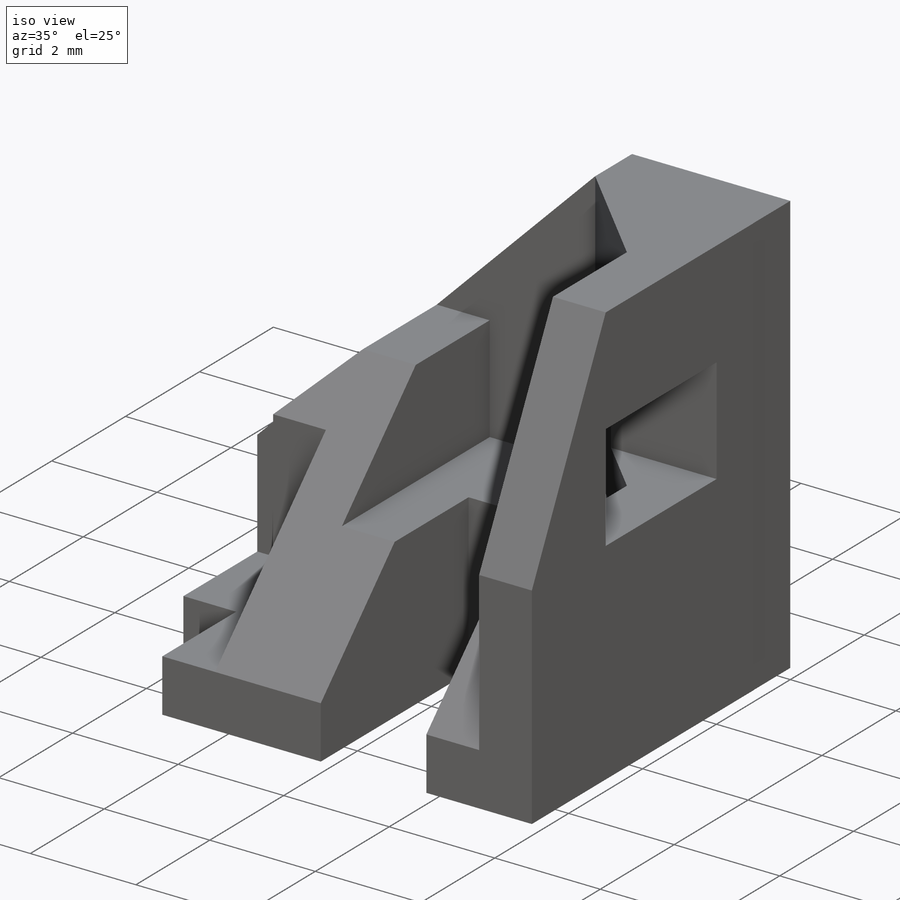
[diagram: iso view]
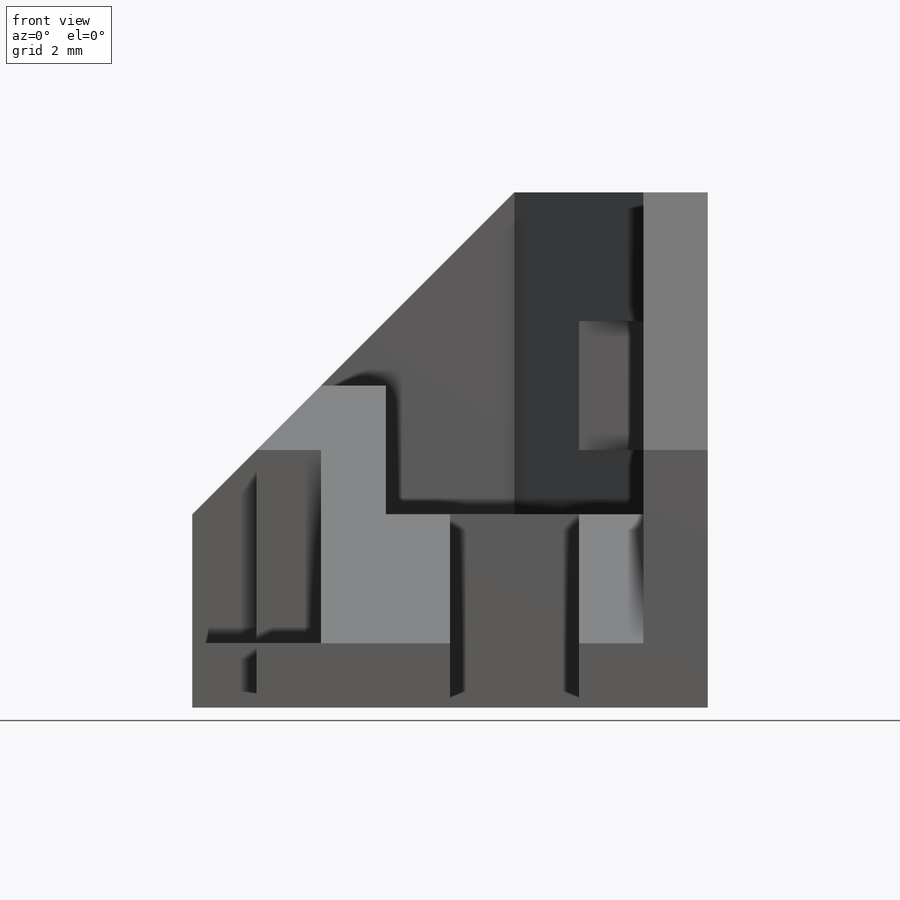
[diagram: front view]
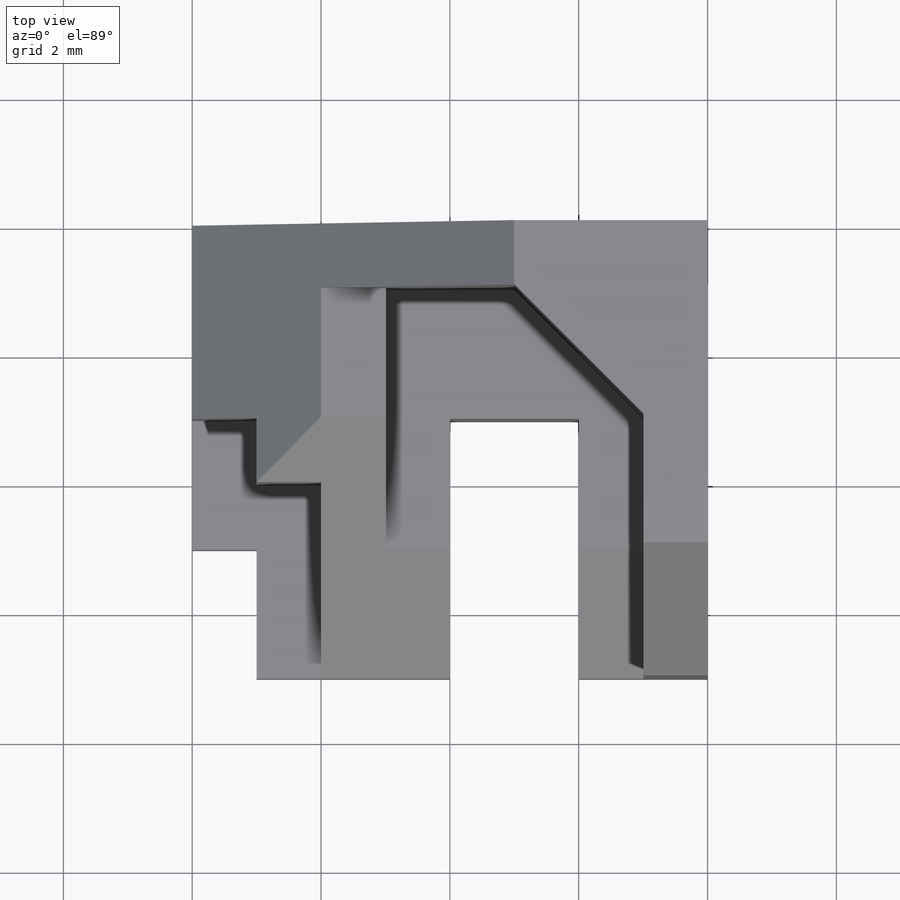
[diagram: top view]
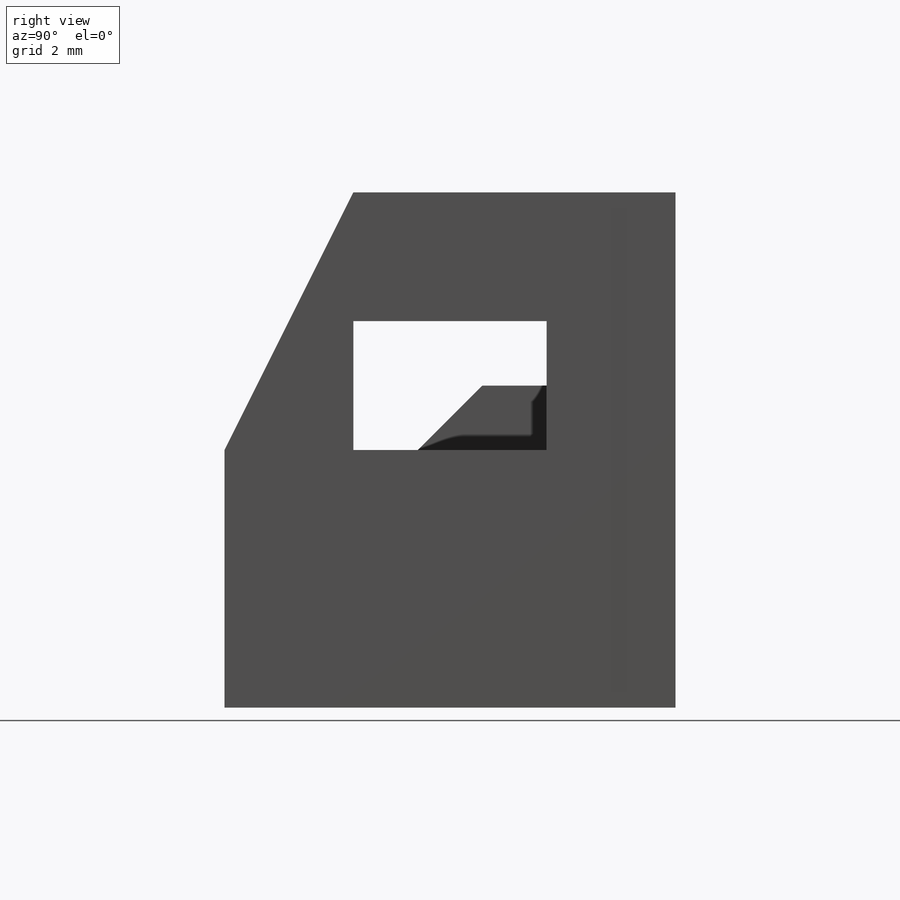
[diagram: right view]
SOLIDWORKS PART (.sldprt)
format: sldprt  version: not decoded by parser v0  size: 333,824 bytes
history: native  units: mm
features: sketch x12, cut_extrude x7, extrude x5, material x1 (+13 scaffold rows collapsed)
feature tree (38):
  scaffold x13  (default folders/planes/origin — collapsed)
  material  "Material <not specified>"
  sketch  "Sketch2"  dims[D1=3.0mm D2=5.0mm D3=5.0mm D4=8.0mm D5=3.0mm]
  extrude  "Boss-Extrude1"  Depth=1mm
  sketch  "Sketch3"  dims[D1=2.0mm]
  extrude  "Boss-Extrude2"  Depth=6mm
  sketch  "Sketch4"  dims[D1=2.0mm D2=1.0mm]
  cut_extrude  "Cut-Extrude1"  Depth=4mm
  sketch  "Sketch5"  dims[D1=1.0mm]
  cut_extrude  "Cut-Extrude2"  Depth=4mm
  sketch  "Sketch6"  dims[D1=2.0mm D2=1.0mm]
  cut_extrude  "Cut-Extrude3"  Depth=4mm
  sketch  "Sketch7"  dims[D1=1.0mm]
  extrude  "Boss-Extrude3"  Depth=4mm
  sketch  "Sketch8"  dims[D1=4.0mm D2=2.0mm D3=1.0mm]
  cut_extrude  "Cut-Extrude4"  Depth=4mm
  sketch  "Sketch9"  dims[D1=4.0mm D2=2.0mm]
  extrude  "Boss-Extrude4"  Depth=1mm
  sketch  "Sketch14"  dims[D1=1.0mm]
  cut_extrude  "Cut-Extrude6"  Depth=4mm
  sketch  "Sketch11"  dims[D1=3.0mm D2=2.0mm D3=2.0mm D4=2.0mm]
  cut_extrude  "Cut-Extrude5"  Depth=2mm
  sketch  "Sketch15"  dims[D1=2.0mm D2=2.0mm]
  extrude  "Boss-Extrude5"  Depth=5mm
  sketch  "Sketch16"
  cut_extrude  "Cut-Extrude7"  Depth=3mm
decode coverage: 23 of 24 modeling features carry decoded parameters
note: suppression state not decoded; provenance and decode notes live in map.json
